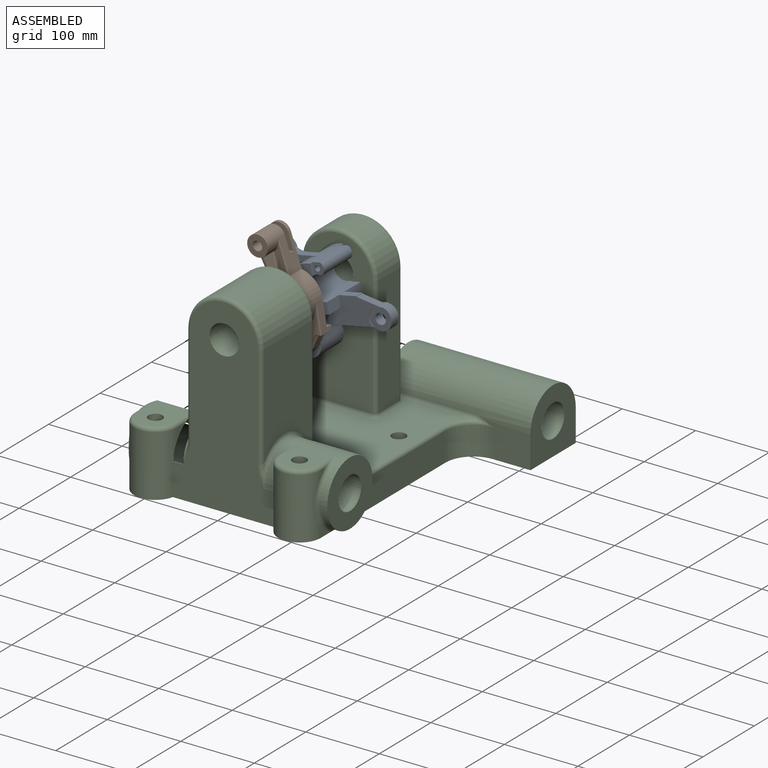
[diagram: assembled view]
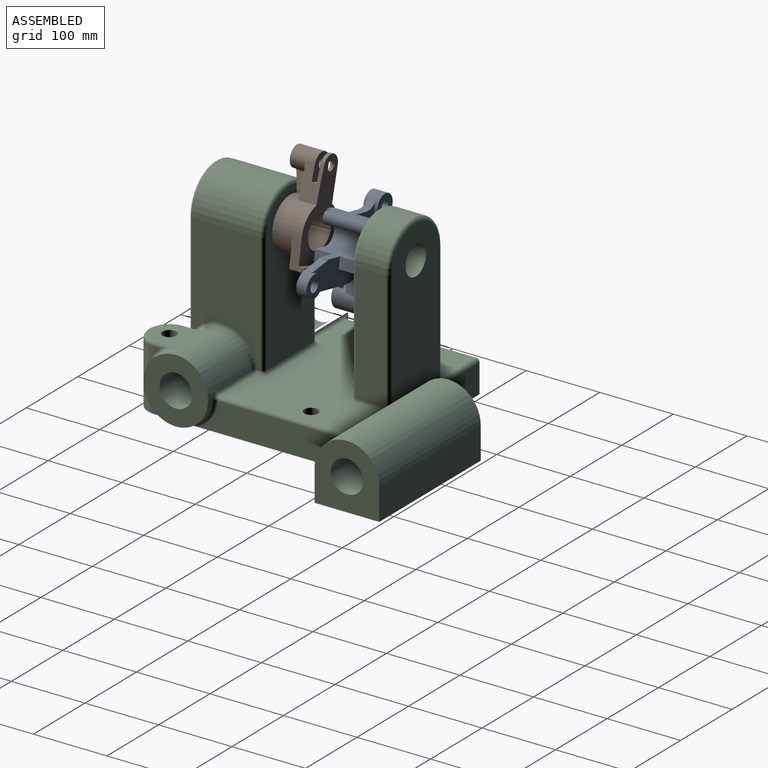
[diagram: assembled view, second angle]
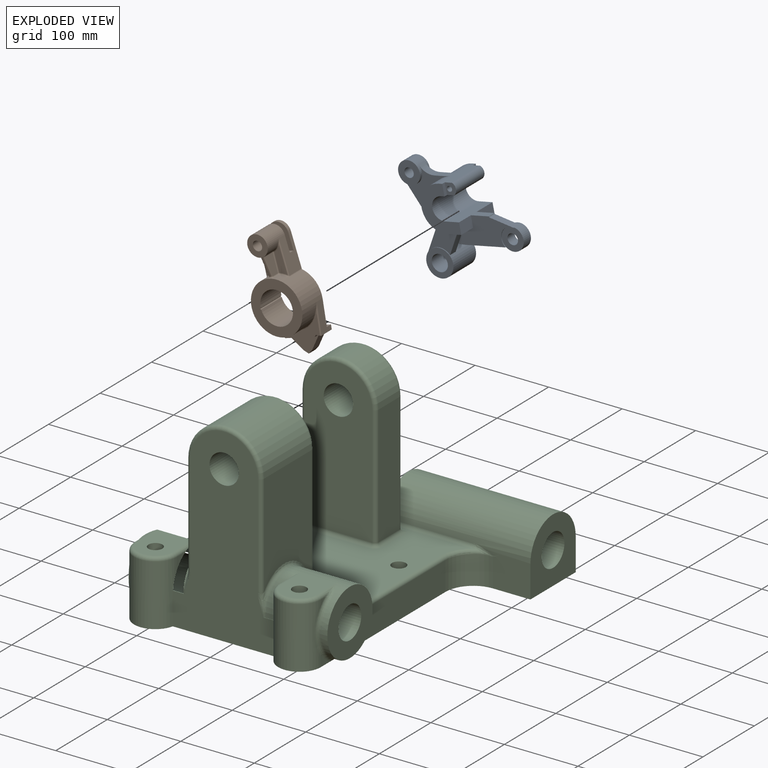
[diagram: exploded view]
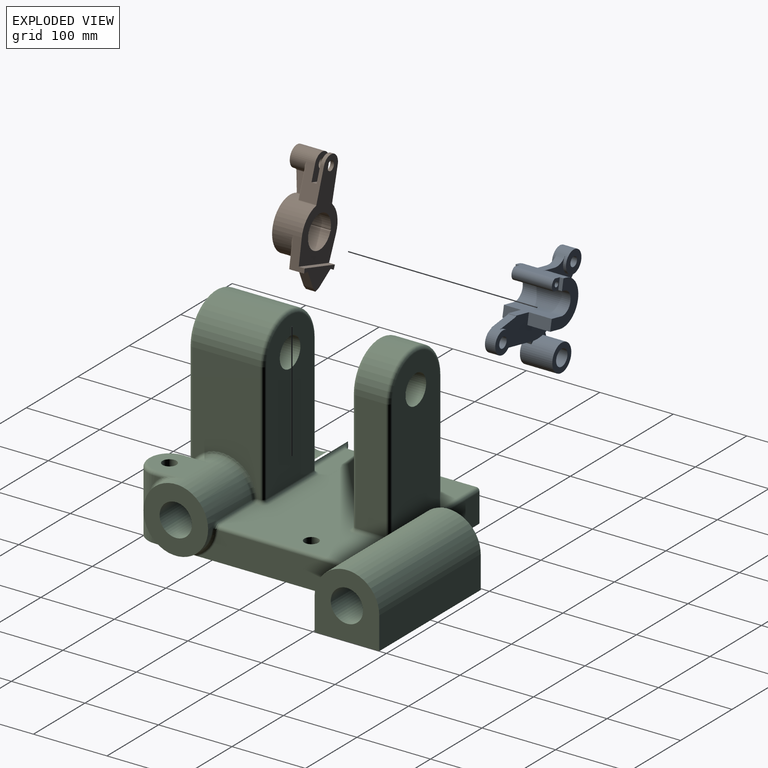
[diagram: exploded view, second angle]
ASSEMBLY  parts=3 mates=2
PART A: 44 faces, bbox 155x65x136.5 mm
  f0: cylinder r=30mm len=60mm, axis (0,-1,0), area 1919.3mm2, adj f1,f7,f12,f13,f38,f39
  f1: plane 78.21x67.17mm, normal (0,-1,0), area 1519.6mm2, adj f0,f12,f16,f21,f22,f32,f38
  f2: plane 81.32x36mm, normal (0,-1,0), area 1803.5mm2, adj f13,f14,f15,f16,f17,f18,f19,f20
  f3: plane 65x14.98mm, normal (0,0,1), area 873.6mm2, adj f4,f6,f7,f11,f24,f25,f26,f27
  f4: plane 60x49mm, normal (0,1,0), area 1420.3mm2, adj f3,f8,f9,f10,f11,f12,f15,f27
  f5: cylinder r=3.5mm len=55mm, axis (0,-1,0), area 1209.5mm2, adj f25,f26
  f6: cylinder r=9mm len=55mm, axis (0,-1,0), area 975.3mm2, adj f3,f12,f25,f26
  f7: plane 60x49mm, normal (0,-1,0), area 1420.3mm2, adj f0,f3,f11,f12,f13,f14,f15,f24
  f8: cylinder r=30mm len=60mm, axis (0,-1,0), area 2921.7mm2, adj f4,f9,f12,f23
  f9: plane 31x19mm, normal (0,0,1), area 589mm2, adj f4,f8,f10,f23
  f10: plane 31x15mm, normal (-1,0,0), area 465mm2, adj f4,f9,f15,f23
  f11: cylinder r=15mm len=65mm, axis (0,-1,0), area 3063.1mm2, adj f3,f4,f7,f15
  f12: plane 65x37.23mm, normal (0,0,-1), area 1118.4mm2, adj f0,f1,f4,f6,f7,f8,f21,f23
  f13: plane 23x19mm, normal (0,0,1), area 371mm2, adj f0,f2,f7,f14,f37,f39
  f14: plane 23x15mm, normal (-1,0,0), area 345mm2, adj f2,f7,f13,f15
  f15: plane 65x44mm, normal (0,0,-1), area 1510mm2, adj f2,f4,f7,f10,f11,f14,f20,f23
  f16: cylinder r=51mm len=44.78mm, axis (0,-1,0), area 601.1mm2, adj f1,f2,f17,f22,f23,f36
  f17: plane 54.82x11mm, normal (0,0,1), area 603mm2, adj f2,f16,f18,f23,f28
  f18: cylinder r=15mm len=25mm, axis (0,-1,0), area 39.4mm2, adj f2,f17,f19,f31
  f19: plane 30.77x11mm, normal (-0.32,0,-0.95), area 357.1mm2, adj f2,f18,f20,f23,f28
  f20: cylinder r=1.5mm len=11mm, axis (0,-1,0), area 20.6mm2, adj f2,f15,f19,f23
  f21: cylinder r=22mm len=18.88mm, axis (0,-1,0), area 249.6mm2, adj f1,f12,f23,f32
  f22: plane 50.24x27.39mm, normal (0.88,0,0.48), area 629.4mm2, adj f1,f16,f23,f32
  f23: plane 142.96x91.7mm, normal (0,1,0), area 3854.8mm2, adj f8,f9,f10,f12,f15,f16,f17,f19
  f24: plane 15x5mm, normal (-1,0,0), area 75mm2, adj f3,f7,f12,f25
  f25: plane 15x14mm, normal (0,-1,0), area 153.6mm2, adj f3,f5,f6,f12,f24
  f26: plane 15x14mm, normal (0,1,0), area 153.6mm2, adj f3,f5,f6,f12,f27
  f27: plane 15x5mm, normal (-1,0,0), area 75mm2, adj f3,f4,f12,f26
  f28: cylinder r=15mm len=30mm, axis (0,-1,0), area 925.7mm2, adj f17,f19,f23,f30,f31
  f29: cylinder r=7.16mm len=14.32mm, axis (0,-1,0), area 629.8mm2, adj f30,f31
  f30: plane 30x30mm, normal (0,1,0), area 545.8mm2, adj f28,f29
  f31: plane 30x30mm, normal (0,-1,0), area 545.8mm2, adj f18,f28,f29
  f32: cylinder r=15mm len=30mm, axis (0,-1,0), area 1265.7mm2, adj f1,f21,f22,f23,f34,f35
  f33: cylinder r=6.38mm len=19mm, axis (0,-1,0), area 761.1mm2, adj f34,f35
  f34: plane 30x30mm, normal (0,1,0), area 579.2mm2, adj f32,f33
  f35: plane 30x30mm, normal (0,-1,0), area 579.2mm2, adj f32,f33
  f36: plane 37.48x23.22mm, normal (0,1,0), area 289mm2, adj f16,f37,f38,f40
  f37: plane 30.04x17.41mm, normal (-0.87,0,0.5), area 381.9mm2, adj f2,f13,f36,f39,f40
  f38: plane 38.83x22.5mm, normal (0.87,0,-0.5), area 493.7mm2, adj f0,f1,f36,f39,f40
  f39: plane 49.01x38.83mm, normal (0,-1,0), area 820.7mm2, adj f0,f13,f37,f38,f40
  f40: cylinder r=18.5mm len=44mm, axis (0,-1,0), area 4697.7mm2, adj f36,f37,f38,f39,f42,f43
  f41: cylinder r=11mm len=44mm, axis (0,-1,0), area 3041.1mm2, adj f42,f43
  f42: plane 37x37mm, normal (0,1,0), area 695.1mm2, adj f40,f41
  f43: plane 37x37mm, normal (0,-1,0), area 695.1mm2, adj f40,f41
PART B: 68 faces, bbox 157.1x54.1x70.4 mm
  f0: plane 33.85x10.39mm, normal (0,-1,0), area 273.7mm2, adj f38,f39,f50,f51
  f1: cylinder r=14mm len=27.97mm, axis (0,1,0), area 213.7mm2, adj f3,f4,f9,f26
  f2: cylinder r=6.35mm len=12.7mm, axis (0,1,0), area 199.5mm2, adj f9,f26
  f3: plane 44.63x23.5mm, normal (-0.04,0,1), area 898.4mm2, adj f1,f9,f21,f25,f26,f27,f39,f40
  f4: plane 44.63x23.5mm, normal (-0.04,0,-1), area 898.4mm2, adj f1,f9,f21,f25,f26,f27,f35,f36
  f5: cylinder r=35mm len=70mm, axis (0,1,0), area 6343.8mm2, adj f8,f9,f10,f12,f35,f40,f41,f44
  f6: cylinder r=22.24mm len=44.47mm, axis (0,1,0), area 5508.3mm2, adj f7,f8,f9
  f7: cylinder r=1mm len=40mm, axis (0,1,0), area 127.5mm2, adj f6,f8,f9
  f8: plane 70x70mm, normal (0,-1,0), area 2293.7mm2, adj f5,f6,f7
  f9: plane 128x70mm, normal (0,1,0), area 4320mm2, adj f1,f2,f3,f4,f5,f6,f7,f10
  f10: plane 39.85x19.5mm, normal (0.12,0,0.99), area 509.9mm2, adj f5,f9,f11,f18,f19,f63
  f11: plane 61.43x8mm, normal (-1,0,0), area 491.5mm2, adj f9,f10,f12,f19
  f12: plane 39.85x19.5mm, normal (0.12,0,-0.99), area 509.9mm2, adj f5,f9,f11,f13,f19,f65
  f13: plane 21.07x6.92mm, normal (0.97,0,0.22), area 147.3mm2, adj f12,f14,f19,f20,f65
  f14: plane 21x20.31mm, normal (0.64,0,-0.77), area 371.6mm2, adj f13,f15,f19,f20,f31,f32
  f15: plane 13x6.1mm, normal (0.82,0,-0.57), area 96.9mm2, adj f14,f16,f19,f32
  f16: plane 13x6.1mm, normal (0.82,0,0.57), area 96.9mm2, adj f15,f17,f19,f32
  f17: plane 21x20.31mm, normal (0.64,0,0.77), area 371.6mm2, adj f16,f18,f19,f20,f31,f32
  f18: plane 21.07x6.92mm, normal (0.97,0,-0.22), area 147.3mm2, adj f10,f17,f19,f20,f63
  f19: plane 61.43x29mm, normal (0,1,0), area 900.3mm2, adj f10,f11,f12,f13,f14,f15,f16,f17
  f20: plane 63.1x26.64mm, normal (0,-1,0), area 758.4mm2, adj f13,f14,f17,f18,f31,f63,f65,f66
  f21: cylinder r=14mm len=34mm, axis (0,1,0), area 2229.6mm2, adj f3,f4,f23,f27,f33,f34,f37,f38
  f22: cylinder r=6.35mm len=34mm, axis (0,1,0), area 1356.5mm2, adj f23,f27
  f23: plane 28x28mm, normal (0,-1,0), area 489.1mm2, adj f21,f22
  f24: plane 33.85x10.39mm, normal (0,-1,0), area 273.7mm2, adj f36,f37,f45,f46
  f25: plane 29.89x7mm, normal (-1,0,0), area 209.2mm2, adj f3,f4,f26,f27
  f26: plane 35x29.89mm, normal (0,-1,0), area 789.3mm2, adj f1,f2,f3,f4,f25
  f27: plane 35x29.89mm, normal (0,1,0), area 789.3mm2, adj f3,f4,f21,f22,f25
  f28: plane 24.75x14.75mm, normal (0,0,1), area 296.9mm2, adj f49,f50,f58,f59
  f29: plane 24.75x14.75mm, normal (0,0,-1), area 296.9mm2, adj f46,f47,f56,f57
  f30: plane 24.05x5.34mm, normal (0.22,-0.98,0), area 49.2mm2, adj f48,f57,f58,f62
  f31: plane 41.96x8mm, normal (1,0,0), area 335.6mm2, adj f14,f17,f20,f32
  f32: plane 41.96x22mm, normal (0,-1,0), area 506.1mm2, adj f14,f15,f16,f17,f31
  f33: bspline ~9.56x3mm, area 10.5mm2, adj f21,f36,f37
  f34: bspline ~9.56x3mm, area 10.5mm2, adj f21,f38,f39
  f35: cylinder r=1.5mm len=23.5mm, axis (0,1,0), area 36.2mm2, adj f4,f5,f9,f41
  f36: cylinder r=1.5mm len=44.7mm, axis (-1,0,0.04), area 92.1mm2, adj f4,f24,f33,f41
  f37: torus R=15.5mm, axis (0,-1,0), area 24.7mm2, adj f21,f24,f33,f42
  f38: torus R=15.5mm, axis (0,-1,0), area 24.7mm2, adj f0,f21,f34,f43
  f39: cylinder r=1.5mm len=44.7mm, axis (1,0,0.04), area 92.1mm2, adj f0,f3,f34,f44
  f40: cylinder r=1.5mm len=23.5mm, axis (0,1,0), area 36.2mm2, adj f3,f5,f9,f44
  f41: bspline ~3.34x3.03mm, area 6.9mm2, adj f5,f35,f36,f45
  f42: sphere r=1.5mm, area 3.1mm2, adj f37,f46,f47
  f43: sphere r=1.5mm, area 3.1mm2, adj f38,f49,f50
  f44: bspline ~3.59x3.19mm, area 6.9mm2, adj f5,f39,f40,f51
  f45: torus R=36.5mm, axis (0,-1,0), area 24.7mm2, adj f5,f24,f41,f52
  f46: cylinder r=1.5mm len=24.75mm, axis (1,0,0), area 58.3mm2, adj f24,f29,f42,f52
  f47: cylinder r=1.5mm len=14.75mm, axis (0,1,0), area 29mm2, adj f21,f29,f42,f53
  f48: bspline ~2x1.47mm, area 3.8mm2, adj f21,f30,f53,f54
  f49: cylinder r=1.5mm len=14.75mm, axis (0,1,0), area 29mm2, adj f21,f28,f43,f54
  f50: cylinder r=1.5mm len=24.75mm, axis (-1,0,0), area 58.3mm2, adj f0,f28,f43,f55
  f51: torus R=36.5mm, axis (0,-1,0), area 24.7mm2, adj f0,f5,f44,f55
  f52: sphere r=1.5mm, area 3.3mm2, adj f45,f46,f56
  f53: bspline ~3.66x3.08mm, area 6.3mm2, adj f21,f47,f48,f57
  f54: bspline ~3.41x3.32mm, area 6.3mm2, adj f21,f48,f49,f58
  f55: sphere r=1.5mm, area 3.3mm2, adj f50,f51,f59
  f56: cylinder r=1.5mm len=9.25mm, axis (0,1,0), area 20.3mm2, adj f5,f29,f52,f60
  f57: cylinder r=1.5mm len=25.32mm, axis (0.98,0.22,0), area 59.2mm2, adj f29,f30,f53,f60
  f58: cylinder r=1.5mm len=25.32mm, axis (-0.98,-0.22,0), area 59.2mm2, adj f28,f30,f54,f61
  f59: cylinder r=1.5mm len=9.25mm, axis (0,1,0), area 20.3mm2, adj f5,f28,f55,f61
  f60: bspline ~3.61x3.04mm, area 7.9mm2, adj f5,f56,f57,f62
  f61: bspline ~3.82x3.46mm, area 7.9mm2, adj f5,f58,f59,f62
  f62: bspline ~2x1.84mm, area 5.2mm2, adj f5,f30,f60,f61
  f63: cylinder r=1.5mm len=40.03mm, axis (-0.99,0,0.12), area 77.3mm2, adj f10,f18,f20,f64
  f64: bspline ~15.27x5.1mm, area 16.4mm2, adj f5,f63,f66
  f65: cylinder r=1.5mm len=40.03mm, axis (0.99,0,0.12), area 77.3mm2, adj f12,f13,f20,f67
  f66: torus R=36.5mm, axis (0,-1,0), area 174.8mm2, adj f5,f20,f64,f67
  f67: bspline ~15.27x5.1mm, area 16.4mm2, adj f5,f65,f66
PART C: 108 faces, bbox 532x575.4x450.3 mm
  f0: cylinder r=44mm len=88mm, axis (-1,0,0), area 8398.9mm2, adj f1,f2,f3,f4,f5,f6,f7,f8
  f1: plane 88x88mm, normal (1,0,0), area 4561.6mm2, adj f0,f17
  f2: bspline ~67.95x15.66mm, area 423.4mm2, adj f0,f3,f11,f16
  f3: torus R=49mm, axis (1,0,0), area 155.4mm2, adj f0,f2,f4,f18
  f4: bspline ~22.64x5.49mm, area 50.6mm2, adj f0,f3,f19
  f5: bspline ~22.64x5.49mm, area 50.2mm2, adj f0,f6,f19
  f6: torus R=49mm, axis (1,0,0), area 364.5mm2, adj f0,f5,f7,f20
  f7: bspline ~11.56x10.98mm, area 78.7mm2, adj f0,f6,f8,f21
  f8: cylinder r=5mm len=66mm, axis (-1,0,0), area 484.6mm2, adj f0,f7,f22,f23
  f9: torus R=49mm, axis (-1,0,0), area 978.5mm2, adj f0,f10,f23,f24,f25
  f10: plane 16.86x0.5mm, normal (0,0,1), area 7.6mm2, adj f0,f9,f11,f25,f26
  f11: cylinder r=29mm len=83mm, axis (0,0,-1), area 6781.3mm2, adj f0,f2,f10,f12,f18,f19,f26,f27
  f12: plane 17.63x16.82mm, normal (-1,0,0), area 120.2mm2, adj f0,f11,f13
  f13: cylinder r=5mm len=38mm, axis (0,1,0), area 218.5mm2, adj f0,f12,f14,f28
  f14: plane 62x48mm, normal (0,0,1), area 2445.2mm2, adj f0,f13,f28,f29,f30
  f15: bspline ~30.57x10mm, area 75.4mm2, adj f0,f16,f29
  f16: torus R=49mm, axis (1,0,0), area 85.4mm2, adj f0,f2,f15,f27
  f17: cylinder r=22mm len=280mm, axis (1,0,0), area 38704.4mm2, adj f1,f31
  f18: plane 16.44x13.06mm, normal (1,0,0), area 91.4mm2, adj f3,f11,f19
  f19: plane 400.63x346.63mm, normal (0,0,-1), area 89197.7mm2, adj f4,f5,f11,f18,f20,f26,f30,f32
  f20: plane 182.44x39mm, normal (1,0,0), area 6387.5mm2, adj f6,f19,f21,f42
  f21: cylinder r=5mm len=155.26mm, axis (0,-1,0), area 1219.4mm2, adj f7,f20,f22,f47
  f22: plane 259.74x188.51mm, normal (0,0,1), area 36112.7mm2, adj f8,f21,f32,f33,f38,f47,f48,f49
  f23: sphere r=5mm, area 37.3mm2, adj f8,f9,f62
  f24: plane 163x92mm, normal (1,0,0), area 11854.1mm2, adj f9,f62,f63,f64,f65
  f25: bspline ~31.62x8.44mm, area 125.8mm2, adj f9,f10,f26,f64
  f26: plane 258x139.48mm, normal (0,-1,0), area 23839.1mm2, adj f10,f11,f19,f25,f43,f64,f66,f67
  f27: plane 8.34x8.06mm, normal (1,0,0), area 30.9mm2, adj f11,f16,f29
  f28: torus R=24mm, axis (0,0,1), area 670.7mm2, adj f11,f13,f14,f29
  f29: cylinder r=5mm len=38mm, axis (0,-1,0), area 182mm2, adj f14,f15,f27,f28
  f30: cylinder r=9.5mm len=88mm, axis (0,0,1), area 5252.7mm2, adj f14,f19
  f31: plane 264x264mm, normal (-1,0,0), area 4561.6mm2, adj f17,f71
  f32: cylinder r=9.5mm len=44mm, axis (0,0,1), area 2626.4mm2, adj f19,f22
  f33: cylinder r=9.5mm len=44mm, axis (0,0,1), area 2626.4mm2, adj f19,f22
  f34: cylinder r=9.5mm len=88mm, axis (0,0,1), area 5252.7mm2, adj f19,f72
  f35: plane 201.94x39mm, normal (-1,0,0), area 7148mm2, adj f19,f36,f56,f73
  f36: cylinder r=5mm len=39mm, axis (0,0,1), area 306.3mm2, adj f19,f35,f37,f74
  f37: plane 258x168mm, normal (0,1,0), area 23233.6mm2, adj f19,f36,f38,f49,f55,f75,f76,f77
  f38: plane 101.5x88mm, normal (-1,0,0), area 5996.5mm2, adj f19,f22,f37,f39,f48,f49,f80,f81
  f39: plane 197x44mm, normal (0,1,0), area 8668mm2, adj f19,f38,f40,f81
  f40: plane 88x88mm, normal (1,0,0), area 5392.5mm2, adj f19,f39,f41,f80,f81
  f41: plane 51.66x44.66mm, normal (0,-1,0), area 2217.1mm2, adj f19,f40,f42,f47,f81,f82
  f42: cylinder r=38mm len=39mm, axis (0,0,1), area 2327.9mm2, adj f19,f20,f41,f47
  f43: cylinder r=29mm len=83mm, axis (0,0,-1), area 6781.2mm2, adj f19,f26,f44,f68,f83,f84,f85,f86
  f44: plane 16.44x13.06mm, normal (-1,0,0), area 91.4mm2, adj f19,f43,f88
  f45: bspline ~22.64x5.49mm, area 50.2mm2, adj f19,f85,f88
  f46: bspline ~22.64x5.49mm, area 50.6mm2, adj f19,f73,f85
  f47: torus R=43mm, axis (0,0,1), area 372.4mm2, adj f21,f22,f41,f42,f82
  f48: cylinder r=5mm len=118.74mm, axis (1,0,0), area 871.9mm2, adj f22,f38,f81,f82
  f49: cylinder r=5mm len=37mm, axis (-1,0,0), area 251.3mm2, adj f22,f37,f38,f89
  f50: cylinder r=5mm len=51mm, axis (0,1,0), area 361.3mm2, adj f22,f51,f89,f90
  f51: torus R=10mm, axis (0,0,1), area 84.1mm2, adj f22,f50,f52,f91
  f52: cylinder r=5mm len=92mm, axis (1,0,0), area 722.6mm2, adj f22,f51,f53,f92
  f53: torus R=10mm, axis (0,0,1), area 84.1mm2, adj f22,f52,f54,f93
  f54: cylinder r=5mm len=41mm, axis (0,-1,0), area 322mm2, adj f22,f53,f78,f94
  f55: cylinder r=5mm len=66mm, axis (1,0,0), area 518.4mm2, adj f22,f37,f74,f78
  f56: cylinder r=5mm len=174.76mm, axis (0,1,0), area 1372.5mm2, adj f22,f35,f74,f95
  f57: cylinder r=5mm len=76mm, axis (-1,0,0), area 521.3mm2, adj f22,f85,f95,f96
  f58: cylinder r=5mm len=5mm, axis (0,-1,0), area 29.5mm2, adj f22,f59,f96,f97
  f59: torus R=10mm, axis (0,0,1), area 84.1mm2, adj f22,f58,f60,f98
  f60: cylinder r=5mm len=92mm, axis (-1,0,0), area 722.6mm2, adj f22,f59,f61,f99
  f61: torus R=10mm, axis (0,0,1), area 84.1mm2, adj f22,f60,f62,f65
  f62: cylinder r=5mm len=5mm, axis (0,1,0), area 29.5mm2, adj f22,f23,f24,f61
  f63: cylinder r=51mm len=102mm, axis (0,-1,0), area 14740.4mm2, adj f24,f69,f97,f100
  f64: cylinder r=5mm len=139mm, axis (0,0,-1), area 1091.7mm2, adj f24,f25,f26,f69
  f65: cylinder r=5mm len=163mm, axis (0,0,1), area 1280.2mm2, adj f24,f61,f99,f100
  f66: cylinder r=20mm len=102mm, axis (0,-1,0), area 12817.7mm2, adj f26,f99
  f67: bspline ~31.62x8.44mm, area 125.8mm2, adj f26,f68,f70,f101
  f68: plane 192.86x176.5mm, normal (0,0,1), area 7.6mm2, adj f26,f43,f67,f85,f101
  f69: torus R=46mm, axis (0,1,0), area 1213.5mm2, adj f26,f63,f64,f70
  f70: cylinder r=5mm len=139mm, axis (0,0,1), area 1091.7mm2, adj f26,f67,f69,f97
  f71: cylinder r=44mm len=88mm, axis (-1,0,0), area 0mm2, adj f31
  f72: plane 62x48mm, normal (0,0,1), area 2445.2mm2, adj f34,f85,f87,f102,f103
  f73: torus R=49mm, axis (1,0,0), area 387.9mm2, adj f35,f46,f85,f95
  f74: sphere r=5mm, area 39.3mm2, adj f36,f55,f56
  f75: cylinder r=20mm len=51mm, axis (0,-1,0), area 6408.8mm2, adj f37,f92
  f76: torus R=46mm, axis (0,1,0), area 1213.5mm2, adj f37,f77,f79,f104
  f77: cylinder r=5mm len=163mm, axis (0,0,-1), area 1280.2mm2, adj f37,f76,f89,f90
  f78: torus R=10mm, axis (0,1,0), area 84.1mm2, adj f37,f54,f55,f79
  f79: cylinder r=5mm len=163mm, axis (0,0,1), area 1280.2mm2, adj f37,f76,f78,f94
  f80: cylinder r=22mm len=197mm, axis (1,0,0), area 27231.3mm2, adj f38,f40
  f81: cylinder r=44mm len=197mm, axis (1,0,0), area 26680.9mm2, adj f38,f39,f40,f41,f48,f82
  f82: bspline ~41.19x8.72mm, area 117.5mm2, adj f41,f47,f48,f81
  f83: plane 8.34x8.06mm, normal (-1,0,0), area 30.9mm2, adj f43,f103,f105
  f84: bspline ~67.95x15.66mm, area 423.4mm2, adj f43,f85,f88,f105
  f85: cylinder r=44mm len=88mm, axis (-1,0,0), area 12060.8mm2, adj f43,f45,f46,f57,f68,f72,f73,f84
  f86: plane 17.63x16.82mm, normal (1,0,0), area 120.2mm2, adj f43,f85,f102
  f87: torus R=24mm, axis (0,0,1), area 670.7mm2, adj f43,f72,f102,f103
  f88: torus R=49mm, axis (1,0,0), area 155.4mm2, adj f44,f45,f84,f85
  f89: bspline ~10x10mm, area 46.7mm2, adj f49,f50,f77
  f90: plane 163x41mm, normal (1,0,0), area 6683mm2, adj f50,f77,f91,f104
  f91: cylinder r=5mm len=163mm, axis (0,0,1), area 1280.2mm2, adj f51,f90,f92,f107
  f92: plane 209x92mm, normal (0,-1,0), area 17063.2mm2, adj f52,f75,f91,f93,f107
  f93: cylinder r=5mm len=163mm, axis (0,0,-1), area 1280.2mm2, adj f53,f92,f94,f107
  f94: plane 163x41mm, normal (-1,0,0), area 6683mm2, adj f54,f79,f93,f104
  f95: bspline ~10x9.51mm, area 46.8mm2, adj f56,f57,f73
  f96: sphere r=5mm, area 36.7mm2, adj f57,f58,f101
  f97: plane 163x92mm, normal (-1,0,0), area 11854.1mm2, adj f58,f63,f70,f98,f101
  f98: cylinder r=5mm len=163mm, axis (0,0,-1), area 1280.2mm2, adj f59,f97,f99,f100
  f99: plane 209x92mm, normal (0,1,0), area 17063.2mm2, adj f60,f65,f66,f98,f100
  f100: torus R=46mm, axis (0,1,0), area 1213.5mm2, adj f63,f65,f98,f99
  f101: torus R=49mm, axis (-1,0,0), area 978.5mm2, adj f67,f68,f85,f96,f97
  f102: cylinder r=5mm len=38mm, axis (0,-1,0), area 218.5mm2, adj f72,f85,f86,f87
  f103: cylinder r=5mm len=38mm, axis (0,1,0), area 182mm2, adj f72,f83,f87,f106
  f104: cylinder r=51mm len=102mm, axis (0,-1,0), area 6569.1mm2, adj f76,f90,f94,f107
  f105: torus R=49mm, axis (1,0,0), area 85.4mm2, adj f83,f84,f85,f106
  f106: bspline ~30.57x10mm, area 75.9mm2, adj f85,f103,f105
  f107: torus R=46mm, axis (0,1,0), area 1213.5mm2, adj f91,f92,f93,f104
PLACE A rot(axis=(0,1,0),168.3deg) t=(8.18,-116,217.1)mm
PLACE B rot(axis=(0,1,0),73.3deg) t=(0,-131,212)mm
PLACE C at identity fixed
MATE revolute A.f4 <-> C.f63  axis (0,1,0) through (0,-51,212)mm
MATE revolute B.f5 <-> C.f63  axis (0,1,0) through (0,-171,212)mm
